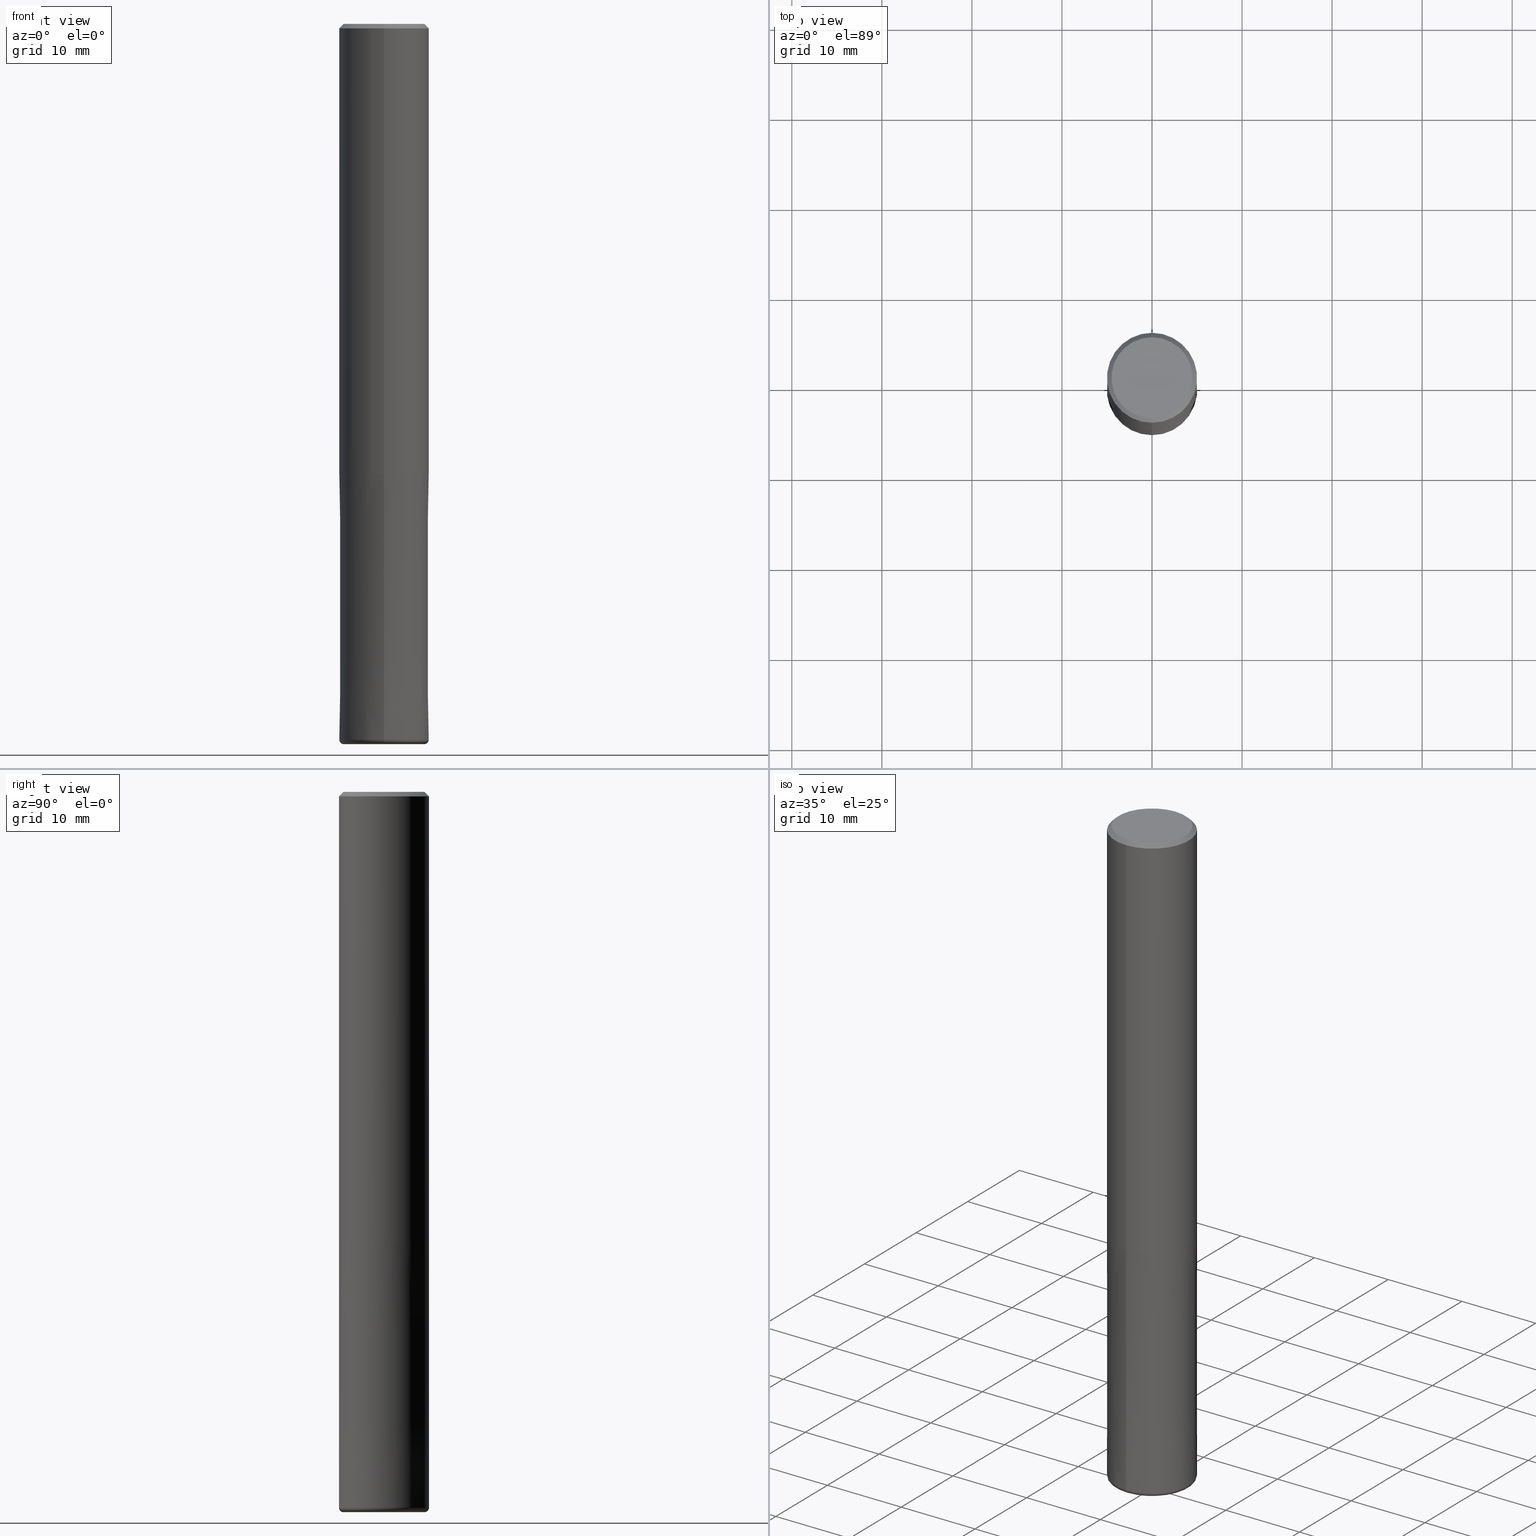
[diagram: canonical four-view strip — front | top / right | iso, engineering-drawing reading convention]
A machine part, canonical four-view strip (front | top / right | iso — engineering-drawing reading convention). The complete STEP part file that produces these views, byte-faithful:
ISO-10303-21;
HEADER;
FILE_DESCRIPTION(('no description'),'unknown implementation level');
FILE_NAME('CXRS5100-05-3000-Huellk.stp','  ',('CIMSOURCE GmbH'),('CADClick - KiM GmbH - www.kimweb.de'),'unknown preprocess','ACIS','unknown authorization');
FILE_SCHEMA(('automotive_design'));
ENDSEC;
DATA;
#1=MECHANICAL_DESIGN_GEOMETRIC_PRESENTATION_REPRESENTATION(' ',(#14,#15,#16,#17,#18,#19,#20,#21,#22,#23,#24,#25,#26,#27,#28,#29,#30,#31,#32,#33,#34,#35,#36,#37,#38,#39,#40,#41,#42,#43,#44,#45,#46,#47,#48,#49,#50,#51,#52,#53,#54,#55,#56,#57,#58,#59,#60,#61,#62,#63,#64,#65,#66,#67,#68,#69,#70,#71,#72,#73,#74,#75,#76,#77,#78,#79,#80,#81,#82,#83,#84),#10);
#2=PRODUCT_DEFINITION_CONTEXT('',#85,'design');
#3=APPLICATION_PROTOCOL_DEFINITION('INTERNATIONAL STANDARD','automotive_design',1994,#85);
#4=PRODUCT_CATEGORY_RELATIONSHIP('NONE','NONE',#86,#87);
#5=SHAPE_DEFINITION_REPRESENTATION(#88,#89);
#6=PRODUCT_DEFINITION_CONTEXT('',#90,'design');
#7=APPLICATION_PROTOCOL_DEFINITION('INTERNATIONAL STANDARD','automotive_design',1994,#90);
#8=PRODUCT_CATEGORY_RELATIONSHIP('NONE','NONE',#91,#92);
#9=SHAPE_DEFINITION_REPRESENTATION(#93,#94);
#10= (GEOMETRIC_REPRESENTATION_CONTEXT(3)GLOBAL_UNCERTAINTY_ASSIGNED_CONTEXT((#97))GLOBAL_UNIT_ASSIGNED_CONTEXT((#99,#100,#101))REPRESENTATION_CONTEXT('NONE','WORKSPACE'));
#14=STYLED_ITEM('',(#103),#104);
#15=STYLED_ITEM('',(#105),#106);
#16=STYLED_ITEM('',(#107),#108);
#17=STYLED_ITEM('',(#109),#110);
#18=STYLED_ITEM('',(#111),#112);
#19=STYLED_ITEM('',(#113),#114);
#20=STYLED_ITEM('',(#115),#116);
#21=STYLED_ITEM('',(#117),#118);
#22=STYLED_ITEM('',(#119),#120);
#23=STYLED_ITEM('',(#121),#122);
#24=STYLED_ITEM('',(#123),#124);
#25=STYLED_ITEM('',(#125),#126);
#26=STYLED_ITEM('',(#127),#128);
#27=STYLED_ITEM('',(#129),#130);
#28=STYLED_ITEM('',(#131),#132);
#29=STYLED_ITEM('',(#133),#134);
#30=STYLED_ITEM('',(#135),#136);
#31=STYLED_ITEM('',(#137),#138);
#32=STYLED_ITEM('',(#139),#140);
#33=STYLED_ITEM('',(#141),#142);
#34=STYLED_ITEM('',(#143),#144);
#35=STYLED_ITEM('',(#145),#146);
#36=STYLED_ITEM('',(#147),#148);
#37=STYLED_ITEM('',(#149),#150);
#38=STYLED_ITEM('',(#151),#152);
#39=STYLED_ITEM('',(#153),#154);
#40=STYLED_ITEM('',(#155),#156);
#41=STYLED_ITEM('',(#157),#158);
#42=STYLED_ITEM('',(#159),#160);
#43=STYLED_ITEM('',(#161),#162);
#44=STYLED_ITEM('',(#163),#164);
#45=STYLED_ITEM('',(#165),#166);
#46=STYLED_ITEM('',(#167),#168);
#47=STYLED_ITEM('',(#169),#170);
#48=STYLED_ITEM('',(#171),#172);
#49=STYLED_ITEM('',(#173),#174);
#50=STYLED_ITEM('',(#175),#176);
#51=STYLED_ITEM('',(#177),#178);
#52=STYLED_ITEM('',(#179),#180);
#53=STYLED_ITEM('',(#181),#182);
#54=STYLED_ITEM('',(#183),#184);
#55=STYLED_ITEM('',(#185),#186);
#56=STYLED_ITEM('',(#187),#188);
#57=STYLED_ITEM('',(#189),#190);
#58=STYLED_ITEM('',(#191),#192);
#59=STYLED_ITEM('',(#193),#194);
#60=STYLED_ITEM('',(#195),#196);
#61=STYLED_ITEM('',(#197),#198);
#62=STYLED_ITEM('',(#199),#200);
#63=STYLED_ITEM('',(#201),#202);
#64=STYLED_ITEM('',(#203),#204);
#65=STYLED_ITEM('',(#205),#206);
#66=STYLED_ITEM('',(#207),#208);
#67=STYLED_ITEM('',(#209),#210);
#68=STYLED_ITEM('',(#211),#212);
#69=STYLED_ITEM('',(#213),#214);
#70=STYLED_ITEM('',(#215),#216);
#71=STYLED_ITEM('',(#217),#218);
#72=STYLED_ITEM('',(#219),#220);
#73=STYLED_ITEM('',(#221),#222);
#74=STYLED_ITEM('',(#223),#224);
#75=STYLED_ITEM('',(#225),#226);
#76=STYLED_ITEM('',(#227),#228);
#77=STYLED_ITEM('',(#229),#230);
#78=STYLED_ITEM('',(#231),#232);
#79=STYLED_ITEM('',(#233),#234);
#80=STYLED_ITEM('',(#235),#236);
#81=STYLED_ITEM('',(#237),#238);
#82=STYLED_ITEM('',(#239),#240);
#83=STYLED_ITEM('',(#241),#242);
#84=STYLED_ITEM('',(#243),#244);
#85=APPLICATION_CONTEXT(' ');
#86=PRODUCT_CATEGORY('part','NONE');
#87=PRODUCT_RELATED_PRODUCT_CATEGORY('detail',' ',(#245));
#88=PRODUCT_DEFINITION_SHAPE('NONE','NONE',#246);
#89=ADVANCED_BREP_SHAPE_REPRESENTATION('1',(#106,#247),#10);
#90=APPLICATION_CONTEXT(' ');
#91=PRODUCT_CATEGORY('part','NONE');
#92=PRODUCT_RELATED_PRODUCT_CATEGORY('detail',' ',(#248));
#93=PRODUCT_DEFINITION_SHAPE('NONE','NONE',#249);
#94=ADVANCED_BREP_SHAPE_REPRESENTATION('2',(#164,#250),#10);
#97=UNCERTAINTY_MEASURE_WITH_UNIT(LENGTH_MEASURE(1.0E-006),#99,'','');
#99= (CONVERSION_BASED_UNIT('MILLIMETRE',#253)LENGTH_UNIT()NAMED_UNIT(#256));
#100= (NAMED_UNIT(#258)PLANE_ANGLE_UNIT()SI_UNIT($,.RADIAN.));
#101= (NAMED_UNIT(#258)SOLID_ANGLE_UNIT()SI_UNIT($,.STERADIAN.));
#103=PRESENTATION_STYLE_ASSIGNMENT((#264));
#104=EDGE_CURVE('',#222,#118,#265,.T.);
#105=PRESENTATION_STYLE_ASSIGNMENT((#266));
#106=MANIFOLD_SOLID_BREP('1',#267);
#107=PRESENTATION_STYLE_ASSIGNMENT((#268));
#108=ADVANCED_FACE('',(#269,#270),#271,.T.);
#109=PRESENTATION_STYLE_ASSIGNMENT((#272));
#110=EDGE_CURVE('',#206,#124,#273,.T.);
#111=PRESENTATION_STYLE_ASSIGNMENT((#274));
#112=EDGE_CURVE('',#166,#186,#275,.T.);
#113=PRESENTATION_STYLE_ASSIGNMENT((#276));
#114=VERTEX_POINT('',#277);
#115=PRESENTATION_STYLE_ASSIGNMENT((#278));
#116=VERTEX_POINT('',#279);
#117=PRESENTATION_STYLE_ASSIGNMENT((#280));
#118=VERTEX_POINT('',#281);
#119=PRESENTATION_STYLE_ASSIGNMENT((#282));
#120=EDGE_CURVE('',#182,#114,#283,.T.);
#121=PRESENTATION_STYLE_ASSIGNMENT((#284));
#122=EDGE_CURVE('',#118,#222,#285,.T.);
#123=PRESENTATION_STYLE_ASSIGNMENT((#286));
#124=VERTEX_POINT('',#287);
#125=PRESENTATION_STYLE_ASSIGNMENT((#288));
#126=ADVANCED_FACE('',(#289),#290,.T.);
#127=PRESENTATION_STYLE_ASSIGNMENT((#291));
#128=ADVANCED_FACE('',(#292),#293,.T.);
#129=PRESENTATION_STYLE_ASSIGNMENT((#294));
#130=EDGE_CURVE('',#222,#188,#295,.T.);
#131=PRESENTATION_STYLE_ASSIGNMENT((#296));
#132=ADVANCED_FACE('',(#297),#298,.T.);
#133=PRESENTATION_STYLE_ASSIGNMENT((#299));
#134=EDGE_CURVE('',#124,#144,#300,.T.);
#135=PRESENTATION_STYLE_ASSIGNMENT((#301));
#136=ADVANCED_FACE('',(#302,#303),#304,.T.);
#137=PRESENTATION_STYLE_ASSIGNMENT((#305));
#138=VERTEX_POINT('',#306);
#139=PRESENTATION_STYLE_ASSIGNMENT((#307));
#140=VERTEX_POINT('',#308);
#141=PRESENTATION_STYLE_ASSIGNMENT((#309));
#142=ADVANCED_FACE('',(#310),#311,.F.);
#143=PRESENTATION_STYLE_ASSIGNMENT((#312));
#144=VERTEX_POINT('',#313);
#145=PRESENTATION_STYLE_ASSIGNMENT((#314));
#146=EDGE_CURVE('',#202,#186,#315,.T.);
#147=PRESENTATION_STYLE_ASSIGNMENT((#316));
#148=EDGE_CURVE('',#138,#154,#317,.T.);
#149=PRESENTATION_STYLE_ASSIGNMENT((#318));
#150=EDGE_CURVE('',#186,#202,#319,.T.);
#151=PRESENTATION_STYLE_ASSIGNMENT((#320));
#152=ADVANCED_FACE('',(#321),#322,.T.);
#153=PRESENTATION_STYLE_ASSIGNMENT((#323));
#154=VERTEX_POINT('',#324);
#155=PRESENTATION_STYLE_ASSIGNMENT((#325));
#156=EDGE_CURVE('',#118,#238,#326,.T.);
#157=PRESENTATION_STYLE_ASSIGNMENT((#327));
#158=ADVANCED_FACE('',(#328),#329,.T.);
#159=PRESENTATION_STYLE_ASSIGNMENT((#330));
#160=ADVANCED_FACE('',(#331),#332,.T.);
#161=PRESENTATION_STYLE_ASSIGNMENT((#333));
#162=EDGE_CURVE('',#144,#124,#334,.T.);
#163=PRESENTATION_STYLE_ASSIGNMENT((#335));
#164=MANIFOLD_SOLID_BREP('2',#336);
#165=PRESENTATION_STYLE_ASSIGNMENT((#337));
#166=VERTEX_POINT('',#338);
#167=PRESENTATION_STYLE_ASSIGNMENT((#339));
#168=EDGE_CURVE('',#238,#220,#340,.T.);
#169=PRESENTATION_STYLE_ASSIGNMENT((#341));
#170=EDGE_CURVE('',#154,#138,#342,.T.);
#171=PRESENTATION_STYLE_ASSIGNMENT((#343));
#172=ADVANCED_FACE('',(#344),#345,.T.);
#173=PRESENTATION_STYLE_ASSIGNMENT((#346));
#174=EDGE_CURVE('',#176,#154,#347,.T.);
#175=PRESENTATION_STYLE_ASSIGNMENT((#348));
#176=VERTEX_POINT('',#349);
#177=PRESENTATION_STYLE_ASSIGNMENT((#350));
#178=EDGE_CURVE('',#220,#238,#351,.T.);
#179=PRESENTATION_STYLE_ASSIGNMENT((#352));
#180=EDGE_CURVE('',#144,#140,#353,.T.);
#181=PRESENTATION_STYLE_ASSIGNMENT((#354));
#182=VERTEX_POINT('',#355);
#183=PRESENTATION_STYLE_ASSIGNMENT((#356));
#184=VERTEX_POINT('',#357);
#185=PRESENTATION_STYLE_ASSIGNMENT((#358));
#186=VERTEX_POINT('',#359);
#187=PRESENTATION_STYLE_ASSIGNMENT((#360));
#188=VERTEX_POINT('',#361);
#189=PRESENTATION_STYLE_ASSIGNMENT((#362));
#190=ADVANCED_FACE('',(#363),#364,.T.);
#191=PRESENTATION_STYLE_ASSIGNMENT((#365));
#192=EDGE_CURVE('',#206,#140,#366,.T.);
#193=PRESENTATION_STYLE_ASSIGNMENT((#367));
#194=EDGE_CURVE('',#114,#182,#368,.T.);
#195=PRESENTATION_STYLE_ASSIGNMENT((#369));
#196=EDGE_CURVE('',#138,#214,#370,.T.);
#197=PRESENTATION_STYLE_ASSIGNMENT((#371));
#198=EDGE_CURVE('',#140,#206,#372,.T.);
#199=PRESENTATION_STYLE_ASSIGNMENT((#373));
#200=EDGE_CURVE('',#220,#222,#374,.T.);
#201=PRESENTATION_STYLE_ASSIGNMENT((#375));
#202=VERTEX_POINT('',#376);
#203=PRESENTATION_STYLE_ASSIGNMENT((#377));
#204=EDGE_CURVE('',#214,#176,#378,.T.);
#205=PRESENTATION_STYLE_ASSIGNMENT((#379));
#206=VERTEX_POINT('',#380);
#207=PRESENTATION_STYLE_ASSIGNMENT((#381));
#208=EDGE_CURVE('',#202,#114,#382,.T.);
#209=PRESENTATION_STYLE_ASSIGNMENT((#383));
#210=ADVANCED_FACE('',(#384),#385,.T.);
#211=PRESENTATION_STYLE_ASSIGNMENT((#386));
#212=ADVANCED_FACE('',(#387),#388,.T.);
#213=PRESENTATION_STYLE_ASSIGNMENT((#389));
#214=VERTEX_POINT('',#390);
#215=PRESENTATION_STYLE_ASSIGNMENT((#391));
#216=EDGE_CURVE('',#176,#214,#392,.T.);
#217=PRESENTATION_STYLE_ASSIGNMENT((#393));
#218=EDGE_CURVE('',#182,#186,#394,.T.);
#219=PRESENTATION_STYLE_ASSIGNMENT((#395));
#220=VERTEX_POINT('',#396);
#221=PRESENTATION_STYLE_ASSIGNMENT((#397));
#222=VERTEX_POINT('',#398);
#223=PRESENTATION_STYLE_ASSIGNMENT((#399));
#224=ADVANCED_FACE('',(#400),#401,.T.);
#225=PRESENTATION_STYLE_ASSIGNMENT((#402));
#226=EDGE_CURVE('',#116,#118,#403,.T.);
#227=PRESENTATION_STYLE_ASSIGNMENT((#404));
#228=EDGE_CURVE('',#202,#184,#405,.T.);
#229=PRESENTATION_STYLE_ASSIGNMENT((#406));
#230=EDGE_CURVE('',#184,#166,#407,.T.);
#231=PRESENTATION_STYLE_ASSIGNMENT((#408));
#232=ADVANCED_FACE('',(#409),#410,.T.);
#233=PRESENTATION_STYLE_ASSIGNMENT((#411));
#234=ADVANCED_FACE('',(#412,#413),#414,.T.);
#235=PRESENTATION_STYLE_ASSIGNMENT((#415));
#236=ADVANCED_FACE('',(#416),#417,.F.);
#237=PRESENTATION_STYLE_ASSIGNMENT((#418));
#238=VERTEX_POINT('',#419);
#239=PRESENTATION_STYLE_ASSIGNMENT((#420));
#240=EDGE_CURVE('',#166,#184,#421,.T.);
#241=PRESENTATION_STYLE_ASSIGNMENT((#422));
#242=EDGE_CURVE('',#188,#116,#423,.T.);
#243=PRESENTATION_STYLE_ASSIGNMENT((#424));
#244=EDGE_CURVE('',#116,#188,#425,.T.);
#245=PRODUCT('1','1','PART-1-DESC',(#426));
#246=PRODUCT_DEFINITION('NONE','NONE',#427,#2);
#247=AXIS2_PLACEMENT_3D('',#428,#429,#430);
#248=PRODUCT('2','2','PART-2-DESC',(#431));
#249=PRODUCT_DEFINITION('NONE','NONE',#432,#6);
#250=AXIS2_PLACEMENT_3D('',#433,#434,#435);
#253=LENGTH_MEASURE_WITH_UNIT(LENGTH_MEASURE(1.0),#436);
#256=DIMENSIONAL_EXPONENTS(1.0,0.0,0.0,0.0,0.0,0.0,0.0);
#258=DIMENSIONAL_EXPONENTS(0.0,0.0,0.0,0.0,0.0,0.0,0.0);
#264=CURVE_STYLE('',#437,POSITIVE_LENGTH_MEASURE(1.0E-006),#438);
#265=CIRCLE('',#439,5.0);
#266=SURFACE_STYLE_USAGE(.BOTH.,#440);
#267=CLOSED_SHELL('',(#190,#210,#160,#234,#172,#126,#158,#152,#212));
#268=SURFACE_STYLE_USAGE(.BOTH.,#441);
#269=FACE_OUTER_BOUND('',#442,.T.);
#270=FACE_BOUND('',#443,.T.);
#271=PLANE('',#444);
#272=CURVE_STYLE('',#445,POSITIVE_LENGTH_MEASURE(1.0E-006),#446);
#273=LINE('',#447,#448);
#274=CURVE_STYLE('',#449,POSITIVE_LENGTH_MEASURE(1.0E-006),#450);
#275=CIRCLE('',#451,0.500000000000007);
#276=POINT_STYLE(' ',#452,POSITIVE_LENGTH_MEASURE(1.0E-006),#453);
#277=CARTESIAN_POINT('',(6.1229093084765E-016,-4.9999,-50.0));
#278=POINT_STYLE(' ',#454,POSITIVE_LENGTH_MEASURE(1.0E-006),#455);
#279=CARTESIAN_POINT('',(6.12303176911189E-016,-5.0,-50.0));
#280=POINT_STYLE(' ',#456,POSITIVE_LENGTH_MEASURE(1.0E-006),#457);
#281=CARTESIAN_POINT('',(6.12303176911189E-016,-5.0,-0.5));
#282=CURVE_STYLE('',#458,POSITIVE_LENGTH_MEASURE(1.0E-006),#459);
#283=CIRCLE('',#460,4.9999);
#284=CURVE_STYLE('',#461,POSITIVE_LENGTH_MEASURE(1.0E-006),#462);
#285=CIRCLE('',#463,5.0);
#286=POINT_STYLE(' ',#464,POSITIVE_LENGTH_MEASURE(1.0E-006),#465);
#287=CARTESIAN_POINT('',(2.75536429610035E-016,-2.25,-50.0));
#288=SURFACE_STYLE_USAGE(.BOTH.,#466);
#289=FACE_OUTER_BOUND('',#467,.T.);
#290=CONICAL_SURFACE('',#468,4.75,0.785398163397448);
#291=SURFACE_STYLE_USAGE(.BOTH.,#469);
#292=FACE_OUTER_BOUND('',#470,.T.);
#293=CONICAL_SURFACE('',#471,4.99995,3.38983050845369E-006);
#294=CURVE_STYLE('',#472,POSITIVE_LENGTH_MEASURE(1.0E-006),#473);
#295=LINE('',#474,#475);
#296=SURFACE_STYLE_USAGE(.BOTH.,#476);
#297=FACE_OUTER_BOUND('',#477,.T.);
#298=CONICAL_SURFACE('',#478,4.99995,3.38983050845369E-006);
#299=CURVE_STYLE('',#479,POSITIVE_LENGTH_MEASURE(1.0E-006),#480);
#300=CIRCLE('',#481,2.25);
#301=SURFACE_STYLE_USAGE(.BOTH.,#482);
#302=FACE_BOUND('',#483,.T.);
#303=FACE_OUTER_BOUND('',#484,.T.);
#304=PLANE('',#485);
#305=POINT_STYLE(' ',#486,POSITIVE_LENGTH_MEASURE(1.0E-006),#487);
#306=CARTESIAN_POINT('',(0.0,2.25,-50.0));
#307=POINT_STYLE(' ',#488,POSITIVE_LENGTH_MEASURE(1.0E-006),#489);
#308=CARTESIAN_POINT('',(0.0,2.25,-80.0));
#309=SURFACE_STYLE_USAGE(.BOTH.,#490);
#310=FACE_OUTER_BOUND('',#491,.T.);
#311=CYLINDRICAL_SURFACE('',#492,2.25);
#312=POINT_STYLE(' ',#493,POSITIVE_LENGTH_MEASURE(1.0E-006),#494);
#313=CARTESIAN_POINT('',(0.0,2.25,-50.0));
#314=CURVE_STYLE('',#495,POSITIVE_LENGTH_MEASURE(1.0E-006),#496);
#315=CIRCLE('',#497,5.0);
#316=CURVE_STYLE('',#498,POSITIVE_LENGTH_MEASURE(1.0E-006),#499);
#317=CIRCLE('',#500,2.25);
#318=CURVE_STYLE('',#501,POSITIVE_LENGTH_MEASURE(1.0E-006),#502);
#319=CIRCLE('',#503,5.0);
#320=SURFACE_STYLE_USAGE(.BOTH.,#504);
#321=FACE_OUTER_BOUND('',#505,.T.);
#322=CYLINDRICAL_SURFACE('',#506,2.25);
#323=POINT_STYLE(' ',#507,POSITIVE_LENGTH_MEASURE(1.0E-006),#508);
#324=CARTESIAN_POINT('',(2.75536429610035E-016,-2.25,-50.0));
#325=CURVE_STYLE('',#509,POSITIVE_LENGTH_MEASURE(1.0E-006),#510);
#326=LINE('',#511,#512);
#327=SURFACE_STYLE_USAGE(.BOTH.,#513);
#328=FACE_OUTER_BOUND('',#514,.T.);
#329=CYLINDRICAL_SURFACE('',#515,5.0);
#330=SURFACE_STYLE_USAGE(.BOTH.,#516);
#331=FACE_OUTER_BOUND('',#517,.T.);
#332=CONICAL_SURFACE('',#518,4.75,0.785398163397448);
#333=CURVE_STYLE('',#519,POSITIVE_LENGTH_MEASURE(1.0E-006),#520);
#334=CIRCLE('',#521,2.25);
#335=SURFACE_STYLE_USAGE(.BOTH.,#522);
#336=CLOSED_SHELL('',(#142,#232,#132,#108,#128,#224,#136,#236));
#337=POINT_STYLE(' ',#523,POSITIVE_LENGTH_MEASURE(1.0E-006),#524);
#338=CARTESIAN_POINT('',(0.0,4.5,-80.0));
#339=CURVE_STYLE('',#525,POSITIVE_LENGTH_MEASURE(1.0E-006),#526);
#340=CIRCLE('',#527,4.5);
#341=CURVE_STYLE('',#528,POSITIVE_LENGTH_MEASURE(1.0E-006),#529);
#342=CIRCLE('',#530,2.25);
#343=SURFACE_STYLE_USAGE(.BOTH.,#531);
#344=FACE_OUTER_BOUND('',#532,.T.);
#345=PLANE('',#533);
#346=CURVE_STYLE('',#534,POSITIVE_LENGTH_MEASURE(1.0E-006),#535);
#347=LINE('',#536,#537);
#348=POINT_STYLE(' ',#538,POSITIVE_LENGTH_MEASURE(1.0E-006),#539);
#349=CARTESIAN_POINT('',(2.75536429610035E-016,-2.25,-79.8));
#350=CURVE_STYLE('',#540,POSITIVE_LENGTH_MEASURE(1.0E-006),#541);
#351=CIRCLE('',#542,4.5);
#352=CURVE_STYLE('',#543,POSITIVE_LENGTH_MEASURE(1.0E-006),#544);
#353=LINE('',#545,#546);
#354=POINT_STYLE(' ',#547,POSITIVE_LENGTH_MEASURE(1.0E-006),#548);
#355=CARTESIAN_POINT('',(0.0,4.9999,-50.0));
#356=POINT_STYLE(' ',#549,POSITIVE_LENGTH_MEASURE(1.0E-006),#550);
#357=CARTESIAN_POINT('',(5.5107285922007E-016,-4.5,-80.0));
#358=POINT_STYLE(' ',#551,POSITIVE_LENGTH_MEASURE(1.0E-006),#552);
#359=CARTESIAN_POINT('',(0.0,5.0,-79.5));
#360=POINT_STYLE(' ',#553,POSITIVE_LENGTH_MEASURE(1.0E-006),#554);
#361=CARTESIAN_POINT('',(0.0,5.0,-50.0));
#362=SURFACE_STYLE_USAGE(.BOTH.,#555);
#363=FACE_OUTER_BOUND('',#556,.T.);
#364=CYLINDRICAL_SURFACE('',#557,2.25);
#365=CURVE_STYLE('',#558,POSITIVE_LENGTH_MEASURE(1.0E-006),#559);
#366=CIRCLE('',#560,2.25);
#367=CURVE_STYLE('',#561,POSITIVE_LENGTH_MEASURE(1.0E-006),#562);
#368=CIRCLE('',#563,4.9999);
#369=CURVE_STYLE('',#564,POSITIVE_LENGTH_MEASURE(1.0E-006),#565);
#370=LINE('',#566,#567);
#371=CURVE_STYLE('',#568,POSITIVE_LENGTH_MEASURE(1.0E-006),#569);
#372=CIRCLE('',#570,2.25);
#373=CURVE_STYLE('',#571,POSITIVE_LENGTH_MEASURE(1.0E-006),#572);
#374=LINE('',#573,#574);
#375=POINT_STYLE(' ',#575,POSITIVE_LENGTH_MEASURE(1.0E-006),#576);
#376=CARTESIAN_POINT('',(6.12303176911189E-016,-5.0,-79.5));
#377=CURVE_STYLE('',#577,POSITIVE_LENGTH_MEASURE(1.0E-006),#578);
#378=CIRCLE('',#579,2.25);
#379=POINT_STYLE(' ',#580,POSITIVE_LENGTH_MEASURE(1.0E-006),#581);
#380=CARTESIAN_POINT('',(2.75536429610035E-016,-2.25,-80.0));
#381=CURVE_STYLE('',#582,POSITIVE_LENGTH_MEASURE(1.0E-006),#583);
#382=LINE('',#584,#585);
#383=SURFACE_STYLE_USAGE(.BOTH.,#586);
#384=FACE_OUTER_BOUND('',#587,.T.);
#385=CYLINDRICAL_SURFACE('',#588,5.0);
#386=SURFACE_STYLE_USAGE(.BOTH.,#589);
#387=FACE_OUTER_BOUND('',#590,.T.);
#388=PLANE('',#591);
#389=POINT_STYLE(' ',#592,POSITIVE_LENGTH_MEASURE(1.0E-006),#593);
#390=CARTESIAN_POINT('',(0.0,2.25,-79.8));
#391=CURVE_STYLE('',#594,POSITIVE_LENGTH_MEASURE(1.0E-006),#595);
#392=CIRCLE('',#596,2.25);
#393=CURVE_STYLE('',#597,POSITIVE_LENGTH_MEASURE(1.0E-006),#598);
#394=LINE('',#599,#600);
#395=POINT_STYLE(' ',#601,POSITIVE_LENGTH_MEASURE(1.0E-006),#602);
#396=CARTESIAN_POINT('',(0.0,4.5,0.0));
#397=POINT_STYLE(' ',#603,POSITIVE_LENGTH_MEASURE(1.0E-006),#604);
#398=CARTESIAN_POINT('',(0.0,5.0,-0.5));
#399=SURFACE_STYLE_USAGE(.BOTH.,#605);
#400=FACE_OUTER_BOUND('',#606,.T.);
#401=TOROIDAL_SURFACE('',#607,4.49999999999999,0.500000000000007);
#402=CURVE_STYLE('',#608,POSITIVE_LENGTH_MEASURE(1.0E-006),#609);
#403=LINE('',#610,#611);
#404=CURVE_STYLE('',#612,POSITIVE_LENGTH_MEASURE(1.0E-006),#613);
#405=CIRCLE('',#614,0.500000000000007);
#406=CURVE_STYLE('',#615,POSITIVE_LENGTH_MEASURE(1.0E-006),#616);
#407=CIRCLE('',#617,4.5);
#408=SURFACE_STYLE_USAGE(.BOTH.,#618);
#409=FACE_OUTER_BOUND('',#619,.T.);
#410=TOROIDAL_SURFACE('',#620,4.49999999999999,0.500000000000007);
#411=SURFACE_STYLE_USAGE(.BOTH.,#621);
#412=FACE_OUTER_BOUND('',#622,.T.);
#413=FACE_BOUND('',#623,.T.);
#414=PLANE('',#624);
#415=SURFACE_STYLE_USAGE(.BOTH.,#625);
#416=FACE_OUTER_BOUND('',#626,.T.);
#417=CYLINDRICAL_SURFACE('',#627,2.25);
#418=POINT_STYLE(' ',#628,POSITIVE_LENGTH_MEASURE(1.0E-006),#629);
#419=CARTESIAN_POINT('',(5.5107285922007E-016,-4.5,0.0));
#420=CURVE_STYLE('',#630,POSITIVE_LENGTH_MEASURE(1.0E-006),#631);
#421=CIRCLE('',#632,4.5);
#422=CURVE_STYLE('',#633,POSITIVE_LENGTH_MEASURE(1.0E-006),#634);
#423=CIRCLE('',#635,5.0);
#424=CURVE_STYLE('',#636,POSITIVE_LENGTH_MEASURE(1.0E-006),#637);
#425=CIRCLE('',#638,5.0);
#426=PRODUCT_CONTEXT('',#85,'mechanical');
#427=PRODUCT_DEFINITION_FORMATION_WITH_SPECIFIED_SOURCE(' ','NONE',#245,.NOT_KNOWN.);
#428=CARTESIAN_POINT('',(0.0,0.0,0.0));
#429=DIRECTION('',(0.0,0.0,1.0));
#430=DIRECTION('',(1.0,0.0,0.0));
#431=PRODUCT_CONTEXT('',#90,'mechanical');
#432=PRODUCT_DEFINITION_FORMATION_WITH_SPECIFIED_SOURCE(' ','NONE',#248,.NOT_KNOWN.);
#433=CARTESIAN_POINT('',(0.0,0.0,0.0));
#434=DIRECTION('',(0.0,0.0,1.0));
#435=DIRECTION('',(1.0,0.0,0.0));
#436= (NAMED_UNIT(#256)LENGTH_UNIT()SI_UNIT(.MILLI.,.METRE.));
#437=DRAUGHTING_PRE_DEFINED_CURVE_FONT('continuous');
#438=COLOUR_RGB('',0.498039215803146,0.498039215803146,0.498039215803146);
#439=AXIS2_PLACEMENT_3D('',#640,#641,#642);
#440=SURFACE_SIDE_STYLE('',(#643));
#441=SURFACE_SIDE_STYLE('',(#644));
#442=EDGE_LOOP('',(#645,#646));
#443=EDGE_LOOP('',(#647,#648));
#444=AXIS2_PLACEMENT_3D('',#649,#650,#651);
#445=DRAUGHTING_PRE_DEFINED_CURVE_FONT('continuous');
#446=COLOUR_RGB('',0.800000011920929,0.800000011920929,0.800000011920929);
#447=CARTESIAN_POINT('',(2.75536429610035E-016,-2.25,-65.0));
#448=VECTOR('',#652,1.0);
#449=DRAUGHTING_PRE_DEFINED_CURVE_FONT('continuous');
#450=COLOUR_RGB('',0.800000011920929,0.800000011920929,0.800000011920929);
#451=AXIS2_PLACEMENT_3D('',#653,#654,#655);
#452=PRE_DEFINED_MARKER('');
#453=COLOUR_RGB('',0.800000011920929,0.800000011920929,0.800000011920929);
#454=PRE_DEFINED_MARKER('');
#455=COLOUR_RGB('',0.498039215803146,0.498039215803146,0.498039215803146);
#456=PRE_DEFINED_MARKER('');
#457=COLOUR_RGB('',0.498039215803146,0.498039215803146,0.498039215803146);
#458=DRAUGHTING_PRE_DEFINED_CURVE_FONT('continuous');
#459=COLOUR_RGB('',0.800000011920929,0.800000011920929,0.800000011920929);
#460=AXIS2_PLACEMENT_3D('',#656,#657,#658);
#461=DRAUGHTING_PRE_DEFINED_CURVE_FONT('continuous');
#462=COLOUR_RGB('',0.498039215803146,0.498039215803146,0.498039215803146);
#463=AXIS2_PLACEMENT_3D('',#659,#660,#661);
#464=PRE_DEFINED_MARKER('');
#465=COLOUR_RGB('',0.800000011920929,0.800000011920929,0.800000011920929);
#466=SURFACE_SIDE_STYLE('',(#662));
#467=EDGE_LOOP('',(#663,#664,#665,#666));
#468=AXIS2_PLACEMENT_3D('',#667,#668,#669);
#469=SURFACE_SIDE_STYLE('',(#670));
#470=EDGE_LOOP('',(#671,#672,#673,#674));
#471=AXIS2_PLACEMENT_3D('',#675,#676,#677);
#472=DRAUGHTING_PRE_DEFINED_CURVE_FONT('continuous');
#473=COLOUR_RGB('',0.498039215803146,0.498039215803146,0.498039215803146);
#474=CARTESIAN_POINT('',(-6.12303176911189E-016,5.0,-25.25));
#475=VECTOR('',#678,1.0);
#476=SURFACE_SIDE_STYLE('',(#679));
#477=EDGE_LOOP('',(#680,#681,#682,#683));
#478=AXIS2_PLACEMENT_3D('',#684,#685,#686);
#479=DRAUGHTING_PRE_DEFINED_CURVE_FONT('continuous');
#480=COLOUR_RGB('',0.800000011920929,0.800000011920929,0.800000011920929);
#481=AXIS2_PLACEMENT_3D('',#687,#688,#689);
#482=SURFACE_SIDE_STYLE('',(#690));
#483=EDGE_LOOP('',(#691,#692));
#484=EDGE_LOOP('',(#693,#694));
#485=AXIS2_PLACEMENT_3D('',#695,#696,#697);
#486=PRE_DEFINED_MARKER('');
#487=COLOUR_RGB('',0.498039215803146,0.498039215803146,0.498039215803146);
#488=PRE_DEFINED_MARKER('');
#489=COLOUR_RGB('',0.800000011920929,0.800000011920929,0.800000011920929);
#490=SURFACE_SIDE_STYLE('',(#698));
#491=EDGE_LOOP('',(#699,#700,#701,#702));
#492=AXIS2_PLACEMENT_3D('',#703,#704,#705);
#493=PRE_DEFINED_MARKER('');
#494=COLOUR_RGB('',0.800000011920929,0.800000011920929,0.800000011920929);
#495=DRAUGHTING_PRE_DEFINED_CURVE_FONT('continuous');
#496=COLOUR_RGB('',0.800000011920929,0.800000011920929,0.800000011920929);
#497=AXIS2_PLACEMENT_3D('',#706,#707,#708);
#498=DRAUGHTING_PRE_DEFINED_CURVE_FONT('continuous');
#499=COLOUR_RGB('',0.498039215803146,0.498039215803146,0.498039215803146);
#500=AXIS2_PLACEMENT_3D('',#709,#710,#711);
#501=DRAUGHTING_PRE_DEFINED_CURVE_FONT('continuous');
#502=COLOUR_RGB('',0.800000011920929,0.800000011920929,0.800000011920929);
#503=AXIS2_PLACEMENT_3D('',#712,#713,#714);
#504=SURFACE_SIDE_STYLE('',(#715));
#505=EDGE_LOOP('',(#716,#717,#718,#719));
#506=AXIS2_PLACEMENT_3D('',#720,#721,#722);
#507=PRE_DEFINED_MARKER('');
#508=COLOUR_RGB('',0.498039215803146,0.498039215803146,0.498039215803146);
#509=DRAUGHTING_PRE_DEFINED_CURVE_FONT('continuous');
#510=COLOUR_RGB('',0.498039215803146,0.498039215803146,0.498039215803146);
#511=CARTESIAN_POINT('',(5.81688018065629E-016,-4.75,-0.25));
#512=VECTOR('',#723,1.0);
#513=SURFACE_SIDE_STYLE('',(#724));
#514=EDGE_LOOP('',(#725,#726,#727,#728));
#515=AXIS2_PLACEMENT_3D('',#729,#730,#731);
#516=SURFACE_SIDE_STYLE('',(#732));
#517=EDGE_LOOP('',(#733,#734,#735,#736));
#518=AXIS2_PLACEMENT_3D('',#737,#738,#739);
#519=DRAUGHTING_PRE_DEFINED_CURVE_FONT('continuous');
#520=COLOUR_RGB('',0.800000011920929,0.800000011920929,0.800000011920929);
#521=AXIS2_PLACEMENT_3D('',#740,#741,#742);
#522=SURFACE_SIDE_STYLE('',(#743));
#523=PRE_DEFINED_MARKER('');
#524=COLOUR_RGB('',0.800000011920929,0.800000011920929,0.800000011920929);
#525=DRAUGHTING_PRE_DEFINED_CURVE_FONT('continuous');
#526=COLOUR_RGB('',0.498039215803146,0.498039215803146,0.498039215803146);
#527=AXIS2_PLACEMENT_3D('',#744,#745,#746);
#528=DRAUGHTING_PRE_DEFINED_CURVE_FONT('continuous');
#529=COLOUR_RGB('',0.498039215803146,0.498039215803146,0.498039215803146);
#530=AXIS2_PLACEMENT_3D('',#747,#748,#749);
#531=SURFACE_SIDE_STYLE('',(#750));
#532=EDGE_LOOP('',(#751,#752));
#533=AXIS2_PLACEMENT_3D('',#753,#754,#755);
#534=DRAUGHTING_PRE_DEFINED_CURVE_FONT('continuous');
#535=COLOUR_RGB('',0.498039215803146,0.498039215803146,0.498039215803146);
#536=CARTESIAN_POINT('',(2.75536429610035E-016,-2.25,-64.9));
#537=VECTOR('',#756,1.0);
#538=PRE_DEFINED_MARKER('');
#539=COLOUR_RGB('',0.498039215803146,0.498039215803146,0.498039215803146);
#540=DRAUGHTING_PRE_DEFINED_CURVE_FONT('continuous');
#541=COLOUR_RGB('',0.498039215803146,0.498039215803146,0.498039215803146);
#542=AXIS2_PLACEMENT_3D('',#757,#758,#759);
#543=DRAUGHTING_PRE_DEFINED_CURVE_FONT('continuous');
#544=COLOUR_RGB('',0.800000011920929,0.800000011920929,0.800000011920929);
#545=CARTESIAN_POINT('',(-2.75536429610035E-016,2.25,-65.0));
#546=VECTOR('',#760,1.0);
#547=PRE_DEFINED_MARKER('');
#548=COLOUR_RGB('',0.800000011920929,0.800000011920929,0.800000011920929);
#549=PRE_DEFINED_MARKER('');
#550=COLOUR_RGB('',0.800000011920929,0.800000011920929,0.800000011920929);
#551=PRE_DEFINED_MARKER('');
#552=COLOUR_RGB('',0.800000011920929,0.800000011920929,0.800000011920929);
#553=PRE_DEFINED_MARKER('');
#554=COLOUR_RGB('',0.498039215803146,0.498039215803146,0.498039215803146);
#555=SURFACE_SIDE_STYLE('',(#761));
#556=EDGE_LOOP('',(#762,#763,#764,#765));
#557=AXIS2_PLACEMENT_3D('',#766,#767,#768);
#558=DRAUGHTING_PRE_DEFINED_CURVE_FONT('continuous');
#559=COLOUR_RGB('',0.800000011920929,0.800000011920929,0.800000011920929);
#560=AXIS2_PLACEMENT_3D('',#769,#770,#771);
#561=DRAUGHTING_PRE_DEFINED_CURVE_FONT('continuous');
#562=COLOUR_RGB('',0.800000011920929,0.800000011920929,0.800000011920929);
#563=AXIS2_PLACEMENT_3D('',#772,#773,#774);
#564=DRAUGHTING_PRE_DEFINED_CURVE_FONT('continuous');
#565=COLOUR_RGB('',0.498039215803146,0.498039215803146,0.498039215803146);
#566=CARTESIAN_POINT('',(-2.75536429610035E-016,2.25,-64.9));
#567=VECTOR('',#775,1.0);
#568=DRAUGHTING_PRE_DEFINED_CURVE_FONT('continuous');
#569=COLOUR_RGB('',0.800000011920929,0.800000011920929,0.800000011920929);
#570=AXIS2_PLACEMENT_3D('',#776,#777,#778);
#571=DRAUGHTING_PRE_DEFINED_CURVE_FONT('continuous');
#572=COLOUR_RGB('',0.498039215803146,0.498039215803146,0.498039215803146);
#573=CARTESIAN_POINT('',(-5.81688018065629E-016,4.75,-0.25));
#574=VECTOR('',#779,1.0);
#575=PRE_DEFINED_MARKER('');
#576=COLOUR_RGB('',0.800000011920929,0.800000011920929,0.800000011920929);
#577=DRAUGHTING_PRE_DEFINED_CURVE_FONT('continuous');
#578=COLOUR_RGB('',0.498039215803146,0.498039215803146,0.498039215803146);
#579=AXIS2_PLACEMENT_3D('',#780,#781,#782);
#580=PRE_DEFINED_MARKER('');
#581=COLOUR_RGB('',0.800000011920929,0.800000011920929,0.800000011920929);
#582=DRAUGHTING_PRE_DEFINED_CURVE_FONT('continuous');
#583=COLOUR_RGB('',0.800000011920929,0.800000011920929,0.800000011920929);
#584=CARTESIAN_POINT('',(6.12297053879419E-016,-4.99995,-64.75));
#585=VECTOR('',#783,1.0);
#586=SURFACE_SIDE_STYLE('',(#784));
#587=EDGE_LOOP('',(#785,#786,#787,#788));
#588=AXIS2_PLACEMENT_3D('',#789,#790,#791);
#589=SURFACE_SIDE_STYLE('',(#792));
#590=EDGE_LOOP('',(#793,#794));
#591=AXIS2_PLACEMENT_3D('',#795,#796,#797);
#592=PRE_DEFINED_MARKER('');
#593=COLOUR_RGB('',0.498039215803146,0.498039215803146,0.498039215803146);
#594=DRAUGHTING_PRE_DEFINED_CURVE_FONT('continuous');
#595=COLOUR_RGB('',0.498039215803146,0.498039215803146,0.498039215803146);
#596=AXIS2_PLACEMENT_3D('',#798,#799,#800);
#597=DRAUGHTING_PRE_DEFINED_CURVE_FONT('continuous');
#598=COLOUR_RGB('',0.800000011920929,0.800000011920929,0.800000011920929);
#599=CARTESIAN_POINT('',(-6.1229705387942E-016,4.99995,-64.75));
#600=VECTOR('',#801,1.0);
#601=PRE_DEFINED_MARKER('');
#602=COLOUR_RGB('',0.498039215803146,0.498039215803146,0.498039215803146);
#603=PRE_DEFINED_MARKER('');
#604=COLOUR_RGB('',0.498039215803146,0.498039215803146,0.498039215803146);
#605=SURFACE_SIDE_STYLE('',(#802));
#606=EDGE_LOOP('',(#803,#804,#805,#806));
#607=AXIS2_PLACEMENT_3D('',#807,#808,#809);
#608=DRAUGHTING_PRE_DEFINED_CURVE_FONT('continuous');
#609=COLOUR_RGB('',0.498039215803146,0.498039215803146,0.498039215803146);
#610=CARTESIAN_POINT('',(6.12303176911189E-016,-5.0,-25.25));
#611=VECTOR('',#810,1.0);
#612=DRAUGHTING_PRE_DEFINED_CURVE_FONT('continuous');
#613=COLOUR_RGB('',0.800000011920929,0.800000011920929,0.800000011920929);
#614=AXIS2_PLACEMENT_3D('',#811,#812,#813);
#615=DRAUGHTING_PRE_DEFINED_CURVE_FONT('continuous');
#616=COLOUR_RGB('',0.800000011920929,0.800000011920929,0.800000011920929);
#617=AXIS2_PLACEMENT_3D('',#814,#815,#816);
#618=SURFACE_SIDE_STYLE('',(#817));
#619=EDGE_LOOP('',(#818,#819,#820,#821));
#620=AXIS2_PLACEMENT_3D('',#822,#823,#824);
#621=SURFACE_SIDE_STYLE('',(#825));
#622=EDGE_LOOP('',(#826,#827));
#623=EDGE_LOOP('',(#828,#829));
#624=AXIS2_PLACEMENT_3D('',#830,#831,#832);
#625=SURFACE_SIDE_STYLE('',(#833));
#626=EDGE_LOOP('',(#834,#835,#836,#837));
#627=AXIS2_PLACEMENT_3D('',#838,#839,#840);
#628=PRE_DEFINED_MARKER('');
#629=COLOUR_RGB('',0.498039215803146,0.498039215803146,0.498039215803146);
#630=DRAUGHTING_PRE_DEFINED_CURVE_FONT('continuous');
#631=COLOUR_RGB('',0.800000011920929,0.800000011920929,0.800000011920929);
#632=AXIS2_PLACEMENT_3D('',#841,#842,#843);
#633=DRAUGHTING_PRE_DEFINED_CURVE_FONT('continuous');
#634=COLOUR_RGB('',0.498039215803146,0.498039215803146,0.498039215803146);
#635=AXIS2_PLACEMENT_3D('',#844,#845,#846);
#636=DRAUGHTING_PRE_DEFINED_CURVE_FONT('continuous');
#637=COLOUR_RGB('',0.498039215803146,0.498039215803146,0.498039215803146);
#638=AXIS2_PLACEMENT_3D('',#847,#848,#849);
#640=CARTESIAN_POINT('',(0.0,0.0,-0.5));
#641=DIRECTION('',(0.0,0.0,-1.0));
#642=DIRECTION('',(0.0,1.0,0.0));
#643=SURFACE_STYLE_FILL_AREA(#850);
#644=SURFACE_STYLE_FILL_AREA(#851);
#645=ORIENTED_EDGE('',*,*,#120,.F.);
#646=ORIENTED_EDGE('',*,*,#194,.F.);
#647=ORIENTED_EDGE('',*,*,#162,.T.);
#648=ORIENTED_EDGE('',*,*,#134,.T.);
#649=CARTESIAN_POINT('',(0.0,3.62495,-50.0));
#650=DIRECTION('',(-0.0,0.0,1.0));
#651=DIRECTION('',(0.0,-1.0,0.0));
#652=DIRECTION('',(0.0,-0.0,1.0));
#653=CARTESIAN_POINT('',(-5.51072859220069E-016,4.49999999999999,-79.5));
#654=DIRECTION('',(1.0,1.22460635382238E-016,0.0));
#655=DIRECTION('',(-1.22460635382238E-016,1.0,0.0));
#656=CARTESIAN_POINT('',(0.0,0.0,-50.0));
#657=DIRECTION('',(0.0,0.0,-1.0));
#658=DIRECTION('',(0.0,1.0,0.0));
#659=CARTESIAN_POINT('',(0.0,0.0,-0.5));
#660=DIRECTION('',(0.0,0.0,-1.0));
#661=DIRECTION('',(0.0,1.0,0.0));
#662=SURFACE_STYLE_FILL_AREA(#852);
#663=ORIENTED_EDGE('',*,*,#200,.T.);
#664=ORIENTED_EDGE('',*,*,#122,.F.);
#665=ORIENTED_EDGE('',*,*,#156,.T.);
#666=ORIENTED_EDGE('',*,*,#168,.T.);
#667=CARTESIAN_POINT('',(0.0,0.0,-0.25));
#668=DIRECTION('',(0.0,-0.0,-1.0));
#669=DIRECTION('',(0.0,1.0,0.0));
#670=SURFACE_STYLE_FILL_AREA(#853);
#671=ORIENTED_EDGE('',*,*,#218,.T.);
#672=ORIENTED_EDGE('',*,*,#146,.F.);
#673=ORIENTED_EDGE('',*,*,#208,.T.);
#674=ORIENTED_EDGE('',*,*,#194,.T.);
#675=CARTESIAN_POINT('',(0.0,0.0,-64.75));
#676=DIRECTION('',(0.0,-0.0,-1.0));
#677=DIRECTION('',(0.0,1.0,0.0));
#678=DIRECTION('',(0.0,0.0,-1.0));
#679=SURFACE_STYLE_FILL_AREA(#854);
#680=ORIENTED_EDGE('',*,*,#218,.F.);
#681=ORIENTED_EDGE('',*,*,#120,.T.);
#682=ORIENTED_EDGE('',*,*,#208,.F.);
#683=ORIENTED_EDGE('',*,*,#150,.F.);
#684=CARTESIAN_POINT('',(0.0,0.0,-64.75));
#685=DIRECTION('',(0.0,-0.0,-1.0));
#686=DIRECTION('',(0.0,1.0,0.0));
#687=CARTESIAN_POINT('',(0.0,0.0,-50.0));
#688=DIRECTION('',(0.0,0.0,-1.0));
#689=DIRECTION('',(0.0,1.0,0.0));
#690=SURFACE_STYLE_FILL_AREA(#855);
#691=ORIENTED_EDGE('',*,*,#198,.F.);
#692=ORIENTED_EDGE('',*,*,#192,.F.);
#693=ORIENTED_EDGE('',*,*,#240,.T.);
#694=ORIENTED_EDGE('',*,*,#230,.T.);
#695=CARTESIAN_POINT('',(0.0,3.375,-80.0));
#696=DIRECTION('',(0.0,0.0,-1.0));
#697=DIRECTION('',(0.0,1.0,0.0));
#698=SURFACE_STYLE_FILL_AREA(#856);
#699=ORIENTED_EDGE('',*,*,#180,.F.);
#700=ORIENTED_EDGE('',*,*,#134,.F.);
#701=ORIENTED_EDGE('',*,*,#110,.F.);
#702=ORIENTED_EDGE('',*,*,#192,.T.);
#703=CARTESIAN_POINT('',(0.0,0.0,-65.0));
#704=DIRECTION('',(-0.0,-0.0,1.0));
#705=DIRECTION('',(0.0,1.0,0.0));
#706=CARTESIAN_POINT('',(0.0,0.0,-79.5));
#707=DIRECTION('',(0.0,0.0,-1.0));
#708=DIRECTION('',(0.0,1.0,0.0));
#709=CARTESIAN_POINT('',(0.0,0.0,-50.0));
#710=DIRECTION('',(0.0,0.0,-1.0));
#711=DIRECTION('',(0.0,1.0,0.0));
#712=CARTESIAN_POINT('',(0.0,0.0,-79.5));
#713=DIRECTION('',(0.0,0.0,-1.0));
#714=DIRECTION('',(0.0,1.0,0.0));
#715=SURFACE_STYLE_FILL_AREA(#857);
#716=ORIENTED_EDGE('',*,*,#196,.T.);
#717=ORIENTED_EDGE('',*,*,#216,.F.);
#718=ORIENTED_EDGE('',*,*,#174,.T.);
#719=ORIENTED_EDGE('',*,*,#170,.T.);
#720=CARTESIAN_POINT('',(0.0,0.0,-64.9));
#721=DIRECTION('',(-0.0,-0.0,1.0));
#722=DIRECTION('',(0.0,1.0,0.0));
#723=DIRECTION('',(-8.65927457071936E-017,0.707106781186548,0.707106781186548));
#724=SURFACE_STYLE_FILL_AREA(#858);
#725=ORIENTED_EDGE('',*,*,#130,.T.);
#726=ORIENTED_EDGE('',*,*,#244,.F.);
#727=ORIENTED_EDGE('',*,*,#226,.T.);
#728=ORIENTED_EDGE('',*,*,#122,.T.);
#729=CARTESIAN_POINT('',(0.0,0.0,-25.25));
#730=DIRECTION('',(-0.0,-0.0,1.0));
#731=DIRECTION('',(0.0,1.0,0.0));
#732=SURFACE_STYLE_FILL_AREA(#859);
#733=ORIENTED_EDGE('',*,*,#200,.F.);
#734=ORIENTED_EDGE('',*,*,#178,.T.);
#735=ORIENTED_EDGE('',*,*,#156,.F.);
#736=ORIENTED_EDGE('',*,*,#104,.F.);
#737=CARTESIAN_POINT('',(0.0,0.0,-0.25));
#738=DIRECTION('',(0.0,-0.0,-1.0));
#739=DIRECTION('',(0.0,1.0,0.0));
#740=CARTESIAN_POINT('',(0.0,0.0,-50.0));
#741=DIRECTION('',(0.0,0.0,-1.0));
#742=DIRECTION('',(0.0,1.0,0.0));
#743=SURFACE_STYLE_FILL_AREA(#860);
#744=CARTESIAN_POINT('',(0.0,0.0,0.0));
#745=DIRECTION('',(0.0,0.0,-1.0));
#746=DIRECTION('',(0.0,1.0,0.0));
#747=CARTESIAN_POINT('',(0.0,0.0,-50.0));
#748=DIRECTION('',(0.0,0.0,-1.0));
#749=DIRECTION('',(0.0,1.0,0.0));
#750=SURFACE_STYLE_FILL_AREA(#861);
#751=ORIENTED_EDGE('',*,*,#178,.F.);
#752=ORIENTED_EDGE('',*,*,#168,.F.);
#753=CARTESIAN_POINT('',(0.0,2.25,0.0));
#754=DIRECTION('',(-0.0,0.0,1.0));
#755=DIRECTION('',(0.0,-1.0,0.0));
#756=DIRECTION('',(-0.0,-0.0,1.0));
#757=CARTESIAN_POINT('',(0.0,0.0,0.0));
#758=DIRECTION('',(0.0,0.0,-1.0));
#759=DIRECTION('',(0.0,1.0,0.0));
#760=DIRECTION('',(0.0,-0.0,-1.0));
#761=SURFACE_STYLE_FILL_AREA(#862);
#762=ORIENTED_EDGE('',*,*,#196,.F.);
#763=ORIENTED_EDGE('',*,*,#148,.T.);
#764=ORIENTED_EDGE('',*,*,#174,.F.);
#765=ORIENTED_EDGE('',*,*,#204,.F.);
#766=CARTESIAN_POINT('',(0.0,0.0,-64.9));
#767=DIRECTION('',(-0.0,-0.0,1.0));
#768=DIRECTION('',(0.0,1.0,0.0));
#769=CARTESIAN_POINT('',(0.0,0.0,-80.0));
#770=DIRECTION('',(0.0,0.0,-1.0));
#771=DIRECTION('',(0.0,1.0,0.0));
#772=CARTESIAN_POINT('',(0.0,0.0,-50.0));
#773=DIRECTION('',(0.0,0.0,-1.0));
#774=DIRECTION('',(0.0,1.0,0.0));
#775=DIRECTION('',(0.0,0.0,-1.0));
#776=CARTESIAN_POINT('',(0.0,0.0,-80.0));
#777=DIRECTION('',(0.0,0.0,-1.0));
#778=DIRECTION('',(0.0,1.0,0.0));
#779=DIRECTION('',(-8.65927457071936E-017,0.707106781186548,-0.707106781186548));
#780=CARTESIAN_POINT('',(0.0,0.0,-79.8));
#781=DIRECTION('',(0.0,0.0,-1.0));
#782=DIRECTION('',(0.0,1.0,0.0));
#783=DIRECTION('',(-4.15120797902538E-022,3.3898305084472E-006,0.999999999994255));
#784=SURFACE_STYLE_FILL_AREA(#863);
#785=ORIENTED_EDGE('',*,*,#130,.F.);
#786=ORIENTED_EDGE('',*,*,#104,.T.);
#787=ORIENTED_EDGE('',*,*,#226,.F.);
#788=ORIENTED_EDGE('',*,*,#242,.F.);
#789=CARTESIAN_POINT('',(0.0,0.0,-25.25));
#790=DIRECTION('',(-0.0,-0.0,1.0));
#791=DIRECTION('',(0.0,1.0,0.0));
#792=SURFACE_STYLE_FILL_AREA(#864);
#793=ORIENTED_EDGE('',*,*,#204,.T.);
#794=ORIENTED_EDGE('',*,*,#216,.T.);
#795=CARTESIAN_POINT('',(0.0,1.125,-79.8));
#796=DIRECTION('',(0.0,0.0,-1.0));
#797=DIRECTION('',(0.0,1.0,0.0));
#798=CARTESIAN_POINT('',(0.0,0.0,-79.8));
#799=DIRECTION('',(0.0,0.0,-1.0));
#800=DIRECTION('',(0.0,1.0,0.0));
#801=DIRECTION('',(-4.15120797902538E-022,3.3898305084472E-006,-0.999999999994255));
#802=SURFACE_STYLE_FILL_AREA(#865);
#803=ORIENTED_EDGE('',*,*,#228,.T.);
#804=ORIENTED_EDGE('',*,*,#240,.F.);
#805=ORIENTED_EDGE('',*,*,#112,.T.);
#806=ORIENTED_EDGE('',*,*,#150,.T.);
#807=CARTESIAN_POINT('',(0.0,0.0,-79.5));
#808=DIRECTION('',(0.0,0.0,-1.0));
#809=DIRECTION('',(0.0,-1.0,0.0));
#810=DIRECTION('',(-0.0,-0.0,1.0));
#811=CARTESIAN_POINT('',(5.51072859220069E-016,-4.49999999999999,-79.5));
#812=DIRECTION('',(1.0,1.22460635382238E-016,0.0));
#813=DIRECTION('',(1.22460635382238E-016,-1.0,-0.0));
#814=CARTESIAN_POINT('',(0.0,0.0,-80.0));
#815=DIRECTION('',(0.0,0.0,-1.0));
#816=DIRECTION('',(0.0,1.0,0.0));
#817=SURFACE_STYLE_FILL_AREA(#866);
#818=ORIENTED_EDGE('',*,*,#228,.F.);
#819=ORIENTED_EDGE('',*,*,#146,.T.);
#820=ORIENTED_EDGE('',*,*,#112,.F.);
#821=ORIENTED_EDGE('',*,*,#230,.F.);
#822=CARTESIAN_POINT('',(0.0,0.0,-79.5));
#823=DIRECTION('',(0.0,0.0,-1.0));
#824=DIRECTION('',(0.0,-1.0,0.0));
#825=SURFACE_STYLE_FILL_AREA(#867);
#826=ORIENTED_EDGE('',*,*,#242,.T.);
#827=ORIENTED_EDGE('',*,*,#244,.T.);
#828=ORIENTED_EDGE('',*,*,#148,.F.);
#829=ORIENTED_EDGE('',*,*,#170,.F.);
#830=CARTESIAN_POINT('',(0.0,2.5,-50.0));
#831=DIRECTION('',(0.0,0.0,-1.0));
#832=DIRECTION('',(0.0,1.0,0.0));
#833=SURFACE_STYLE_FILL_AREA(#868);
#834=ORIENTED_EDGE('',*,*,#180,.T.);
#835=ORIENTED_EDGE('',*,*,#198,.T.);
#836=ORIENTED_EDGE('',*,*,#110,.T.);
#837=ORIENTED_EDGE('',*,*,#162,.F.);
#838=CARTESIAN_POINT('',(0.0,0.0,-65.0));
#839=DIRECTION('',(-0.0,-0.0,1.0));
#840=DIRECTION('',(0.0,1.0,0.0));
#841=CARTESIAN_POINT('',(0.0,0.0,-80.0));
#842=DIRECTION('',(0.0,0.0,-1.0));
#843=DIRECTION('',(0.0,1.0,0.0));
#844=CARTESIAN_POINT('',(0.0,0.0,-50.0));
#845=DIRECTION('',(0.0,0.0,-1.0));
#846=DIRECTION('',(0.0,1.0,0.0));
#847=CARTESIAN_POINT('',(0.0,0.0,-50.0));
#848=DIRECTION('',(0.0,0.0,-1.0));
#849=DIRECTION('',(0.0,1.0,0.0));
#850=FILL_AREA_STYLE('',(#869));
#851=FILL_AREA_STYLE('',(#870));
#852=FILL_AREA_STYLE('',(#871));
#853=FILL_AREA_STYLE('',(#872));
#854=FILL_AREA_STYLE('',(#873));
#855=FILL_AREA_STYLE('',(#874));
#856=FILL_AREA_STYLE('',(#875));
#857=FILL_AREA_STYLE('',(#876));
#858=FILL_AREA_STYLE('',(#877));
#859=FILL_AREA_STYLE('',(#878));
#860=FILL_AREA_STYLE('',(#879));
#861=FILL_AREA_STYLE('',(#880));
#862=FILL_AREA_STYLE('',(#881));
#863=FILL_AREA_STYLE('',(#882));
#864=FILL_AREA_STYLE('',(#883));
#865=FILL_AREA_STYLE('',(#884));
#866=FILL_AREA_STYLE('',(#885));
#867=FILL_AREA_STYLE('',(#886));
#868=FILL_AREA_STYLE('',(#887));
#869=FILL_AREA_STYLE_COLOUR('',#888);
#870=FILL_AREA_STYLE_COLOUR('',#889);
#871=FILL_AREA_STYLE_COLOUR('',#890);
#872=FILL_AREA_STYLE_COLOUR('',#891);
#873=FILL_AREA_STYLE_COLOUR('',#892);
#874=FILL_AREA_STYLE_COLOUR('',#893);
#875=FILL_AREA_STYLE_COLOUR('',#894);
#876=FILL_AREA_STYLE_COLOUR('',#895);
#877=FILL_AREA_STYLE_COLOUR('',#896);
#878=FILL_AREA_STYLE_COLOUR('',#897);
#879=FILL_AREA_STYLE_COLOUR('',#898);
#880=FILL_AREA_STYLE_COLOUR('',#899);
#881=FILL_AREA_STYLE_COLOUR('',#900);
#882=FILL_AREA_STYLE_COLOUR('',#901);
#883=FILL_AREA_STYLE_COLOUR('',#902);
#884=FILL_AREA_STYLE_COLOUR('',#903);
#885=FILL_AREA_STYLE_COLOUR('',#904);
#886=FILL_AREA_STYLE_COLOUR('',#905);
#887=FILL_AREA_STYLE_COLOUR('',#906);
#888=COLOUR_RGB('',0.498039215803146,0.498039215803146,0.498039215803146);
#889=COLOUR_RGB('',0.800000011920929,0.800000011920929,0.800000011920929);
#890=COLOUR_RGB('',0.498039215803146,0.498039215803146,0.498039215803146);
#891=COLOUR_RGB('',0.800000011920929,0.800000011920929,0.800000011920929);
#892=COLOUR_RGB('',0.800000011920929,0.800000011920929,0.800000011920929);
#893=COLOUR_RGB('',0.800000011920929,0.800000011920929,0.800000011920929);
#894=COLOUR_RGB('',0.800000011920929,0.800000011920929,0.800000011920929);
#895=COLOUR_RGB('',0.498039215803146,0.498039215803146,0.498039215803146);
#896=COLOUR_RGB('',0.498039215803146,0.498039215803146,0.498039215803146);
#897=COLOUR_RGB('',0.498039215803146,0.498039215803146,0.498039215803146);
#898=COLOUR_RGB('',0.800000011920929,0.800000011920929,0.800000011920929);
#899=COLOUR_RGB('',0.498039215803146,0.498039215803146,0.498039215803146);
#900=COLOUR_RGB('',0.498039215803146,0.498039215803146,0.498039215803146);
#901=COLOUR_RGB('',0.498039215803146,0.498039215803146,0.498039215803146);
#902=COLOUR_RGB('',0.498039215803146,0.498039215803146,0.498039215803146);
#903=COLOUR_RGB('',0.800000011920929,0.800000011920929,0.800000011920929);
#904=COLOUR_RGB('',0.800000011920929,0.800000011920929,0.800000011920929);
#905=COLOUR_RGB('',0.498039215803146,0.498039215803146,0.498039215803146);
#906=COLOUR_RGB('',0.800000011920929,0.800000011920929,0.800000011920929);
#907=AXIS2_PLACEMENT_3D('PCS',#908,#909,#910);
#908=CARTESIAN_POINT('',(0.0,0.0,0.0));
#909=DIRECTION('',(0.0,0.0,1.0));
#910=DIRECTION('',(1.0,0.0,0.0));
#911=AXIS2_PLACEMENT_3D('CIP',#912,#913,#914);
#912=CARTESIAN_POINT('',(0.0,0.0,-80.0));
#913=DIRECTION('',(0.0,0.0,1.0));
#914=DIRECTION('',(1.0,0.0,0.0));
#915=AXIS2_PLACEMENT_3D('CRP',#916,#917,#918);
#916=CARTESIAN_POINT('',(-5.0,0.0,-80.0));
#917=DIRECTION('',(0.0,0.0,1.0));
#918=DIRECTION('',(1.0,0.0,0.0));
#919=AXIS2_PLACEMENT_3D('MCS',#920,#921,#922);
#920=CARTESIAN_POINT('',(0.0,0.0,-50.0));
#921=DIRECTION('',(0.0,0.0,1.0));
#922=DIRECTION('',(1.0,0.0,0.0));
#923=CONSTRUCTIVE_GEOMETRY_REPRESENTATION_RELATIONSHIP('coordinate systems',$,#89,#924);
#924=CONSTRUCTIVE_GEOMETRY_REPRESENTATION('coordinate systems',(#907,#911,#915,#919),#10);
ENDSEC;
END-ISO-10303-21;
